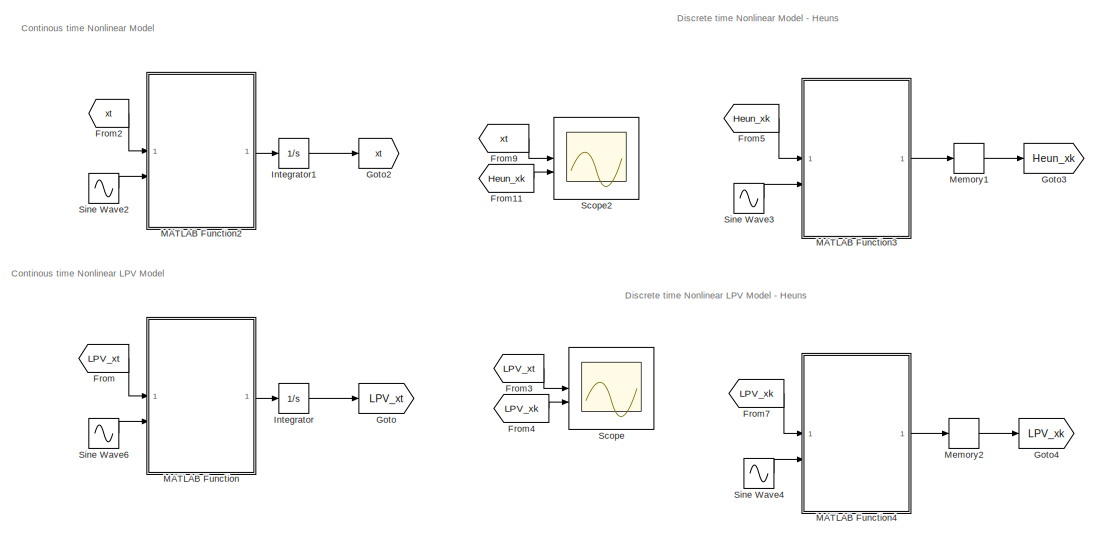
[diagram: root canvas - part 1/2, full width, top band]
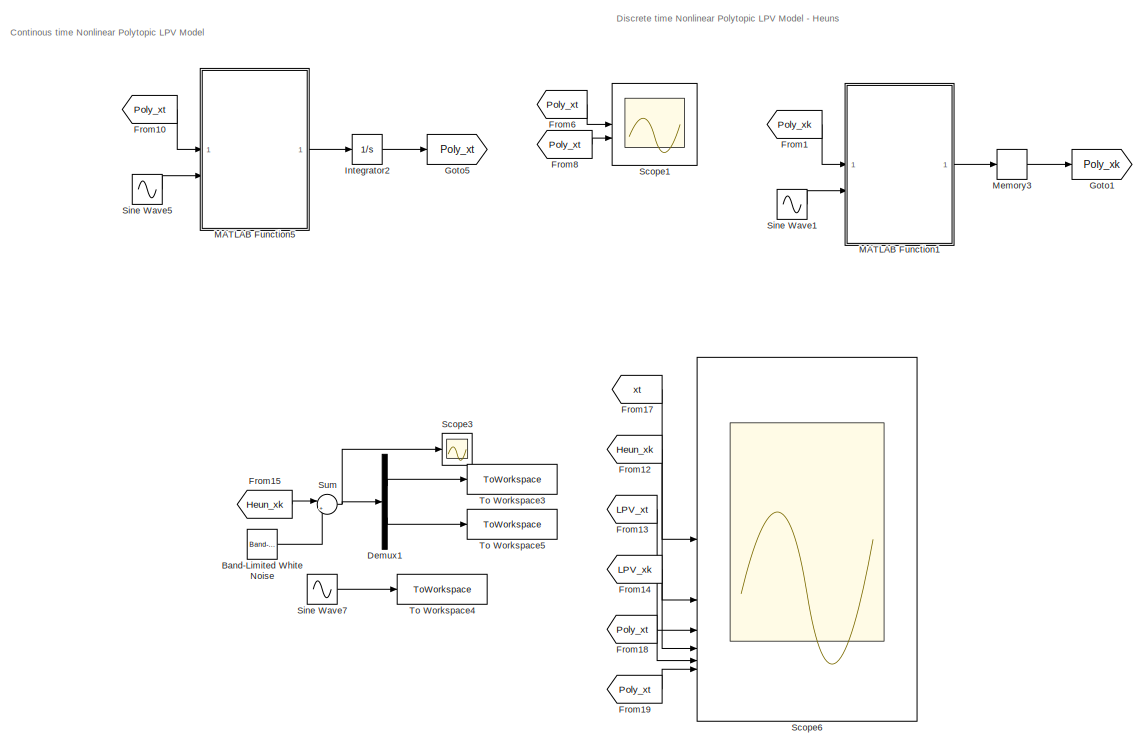
[diagram: root canvas - part 2/2, full width, bottom band]
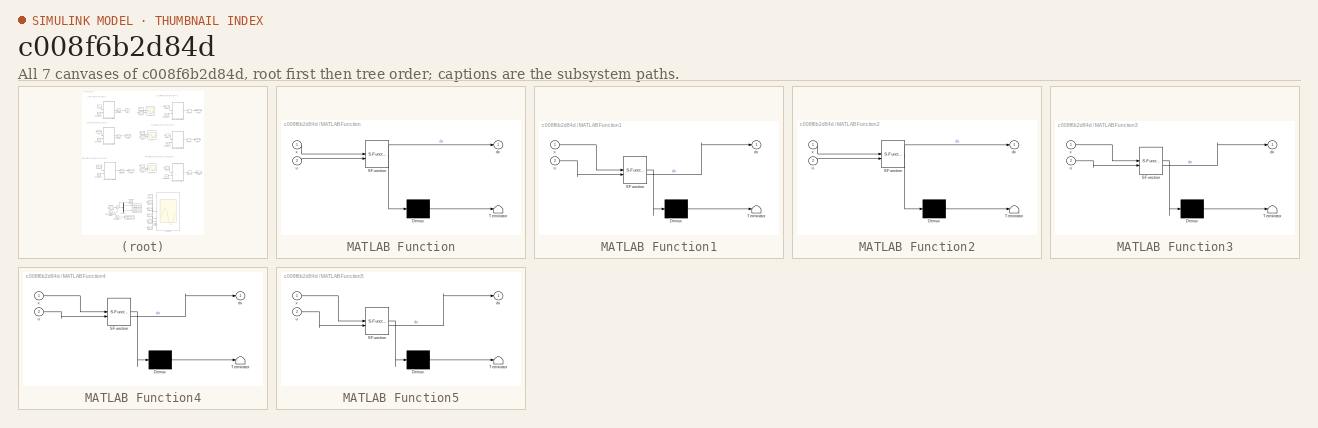
[diagram: thumbnail index - all 7 canvases of the model, root first then tree order]
MODEL slx_c008f6b2d84d
KIND model
CONFIG AbsTol = auto
CONFIG EnableMultiTasking = off
CONFIG FixedStep = 0.01
CONFIG MaxStep = auto
CONFIG MinStep = auto
CONFIG RelTol = 1e-3
CONFIG SampleTimeConstraint = Unconstrained
CONFIG SolverName = FixedStepAuto
CONFIG StartTime = 0.0
CONFIG StopTime = 50
BLOCK [Reference] Band-Limited White Noise  REF=simulink/Sources/Band-Limited
White Noise
  Commented = on
  SourceBlock = simulink/Sources/Band-Limited\nWhite Noise
  SourceType = Band-Limited White Noise.
BLOCK [Demux] Demux1
  Commented = on
  Outputs = 2
BLOCK [From] From
  GotoTag = LPV_xt
BLOCK [From] From1
  GotoTag = Poly_xk
BLOCK [From] From10
  GotoTag = Poly_xt
BLOCK [From] From11
  GotoTag = Heun_xk
BLOCK [From] From12
  GotoTag = Heun_xk
BLOCK [From] From13
  GotoTag = LPV_xt
BLOCK [From] From14
  GotoTag = LPV_xk
BLOCK [From] From15
  Commented = on
  GotoTag = Heun_xk
BLOCK [From] From17
  GotoTag = xt
BLOCK [From] From18
  GotoTag = Poly_xt
BLOCK [From] From19
  GotoTag = Poly_xt
BLOCK [From] From2
  GotoTag = xt
BLOCK [From] From3
  GotoTag = LPV_xt
BLOCK [From] From4
  GotoTag = LPV_xk
BLOCK [From] From5
  GotoTag = Heun_xk
BLOCK [From] From6
  GotoTag = Poly_xt
BLOCK [From] From7
  GotoTag = LPV_xk
BLOCK [From] From8
  GotoTag = Poly_xt
BLOCK [From] From9
  GotoTag = xt
BLOCK [Goto] Goto
  GotoTag = LPV_xt
BLOCK [Goto] Goto1
  GotoTag = Poly_xk
BLOCK [Goto] Goto2
  GotoTag = xt
BLOCK [Goto] Goto3
  GotoTag = Heun_xk
BLOCK [Goto] Goto4
  GotoTag = LPV_xk
BLOCK [Goto] Goto5
  GotoTag = Poly_xt
BLOCK [Integrator] Integrator
  InitialCondition = [0 0.2].'
BLOCK [Integrator] Integrator1
  InitialCondition = [0 0.2].'
BLOCK [Integrator] Integrator2
  InitialCondition = [0 0.2].'
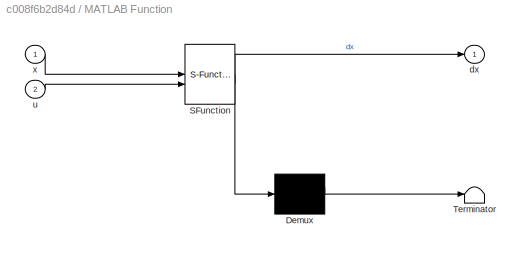
BLOCK [SubSystem] MATLAB Function
  ErrorFcn = Stateflow.Translate.translate
  PermitHierarchicalResolution = ExplicitOnly
  SFBlockType = MATLAB Function
  TreatAsAtomicUnit = on
BLOCK [Demux] MATLAB Function/ Demux 
  Outputs = 1
BLOCK [S-Function] MATLAB Function/ SFunction 
  EnableBusSupport = on
  FunctionName = sf_sfun
  PortCounts = [2 2]
  SFcnIsStateOwnerBlock = off
  SFunctionDeploymentMode = off
  Tag = Stateflow S-Function 2
BLOCK [Terminator] MATLAB Function/ Terminator 
BLOCK [Outport] MATLAB Function/dx
BLOCK [Inport] MATLAB Function/u
  Port = 2
BLOCK [Inport] MATLAB Function/x
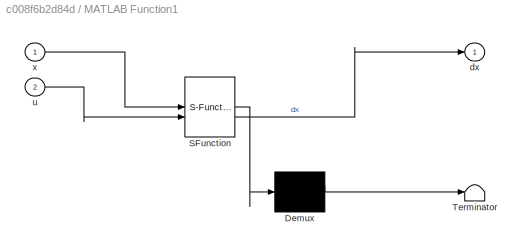
BLOCK [SubSystem] MATLAB Function1
  ErrorFcn = Stateflow.Translate.translate
  PermitHierarchicalResolution = ExplicitOnly
  SFBlockType = MATLAB Function
  TreatAsAtomicUnit = on
BLOCK [Demux] MATLAB Function1/ Demux 
  Outputs = 1
BLOCK [S-Function] MATLAB Function1/ SFunction 
  EnableBusSupport = on
  FunctionName = sf_sfun
  Parameters = adis1,adis2,bdis1,bdis2,x2max,x2min
  PortCounts = [2 2]
  SFcnIsStateOwnerBlock = off
  SFunctionDeploymentMode = off
  Tag = Stateflow S-Function 1
BLOCK [Terminator] MATLAB Function1/ Terminator 
BLOCK [Outport] MATLAB Function1/dx
BLOCK [Inport] MATLAB Function1/u
  Port = 2
BLOCK [Inport] MATLAB Function1/x
BLOCK [SubSystem] MATLAB Function2
  ErrorFcn = Stateflow.Translate.translate
  PermitHierarchicalResolution = ExplicitOnly
  SFBlockType = MATLAB Function
  TreatAsAtomicUnit = on
BLOCK [Demux] MATLAB Function2/ Demux 
  Outputs = 1
BLOCK [S-Function] MATLAB Function2/ SFunction 
  EnableBusSupport = on
  FunctionName = sf_sfun
  PortCounts = [2 2]
  SFcnIsStateOwnerBlock = off
  SFunctionDeploymentMode = off
  Tag = Stateflow S-Function 3
BLOCK [Terminator] MATLAB Function2/ Terminator 
BLOCK [Outport] MATLAB Function2/dx
BLOCK [Inport] MATLAB Function2/u
  Port = 2
BLOCK [Inport] MATLAB Function2/x
BLOCK [SubSystem] MATLAB Function3
  ErrorFcn = Stateflow.Translate.translate
  PermitHierarchicalResolution = ExplicitOnly
  SFBlockType = MATLAB Function
  TreatAsAtomicUnit = on
BLOCK [Demux] MATLAB Function3/ Demux 
  Outputs = 1
BLOCK [S-Function] MATLAB Function3/ SFunction 
  EnableBusSupport = on
  FunctionName = sf_sfun
  PortCounts = [2 2]
  SFcnIsStateOwnerBlock = off
  SFunctionDeploymentMode = off
  Tag = Stateflow S-Function 4
BLOCK [Terminator] MATLAB Function3/ Terminator 
BLOCK [Outport] MATLAB Function3/dx
BLOCK [Inport] MATLAB Function3/u
  Port = 2
BLOCK [Inport] MATLAB Function3/x
BLOCK [SubSystem] MATLAB Function4
  ErrorFcn = Stateflow.Translate.translate
  PermitHierarchicalResolution = ExplicitOnly
  SFBlockType = MATLAB Function
  TreatAsAtomicUnit = on
BLOCK [Demux] MATLAB Function4/ Demux 
  Outputs = 1
BLOCK [S-Function] MATLAB Function4/ SFunction 
  EnableBusSupport = on
  FunctionName = sf_sfun
  PortCounts = [2 2]
  SFcnIsStateOwnerBlock = off
  SFunctionDeploymentMode = off
  Tag = Stateflow S-Function 5
BLOCK [Terminator] MATLAB Function4/ Terminator 
BLOCK [Outport] MATLAB Function4/dx
BLOCK [Inport] MATLAB Function4/u
  Port = 2
BLOCK [Inport] MATLAB Function4/x
BLOCK [SubSystem] MATLAB Function5
  ErrorFcn = Stateflow.Translate.translate
  PermitHierarchicalResolution = ExplicitOnly
  SFBlockType = MATLAB Function
  TreatAsAtomicUnit = on
BLOCK [Demux] MATLAB Function5/ Demux 
  Outputs = 1
BLOCK [S-Function] MATLAB Function5/ SFunction 
  EnableBusSupport = on
  FunctionName = sf_sfun
  Parameters = A1,A2,B,x2max,x2min
  PortCounts = [2 2]
  SFcnIsStateOwnerBlock = off
  SFunctionDeploymentMode = off
  Tag = Stateflow S-Function 6
BLOCK [Terminator] MATLAB Function5/ Terminator 
BLOCK [Outport] MATLAB Function5/dx
BLOCK [Inport] MATLAB Function5/u
  Port = 2
BLOCK [Inport] MATLAB Function5/x
BLOCK [Memory] Memory1
  InitialCondition = [0 0.2].'
BLOCK [Memory] Memory2
  InitialCondition = [0 0.2].'
BLOCK [Memory] Memory3
  InitialCondition = [0 0.2].'
BLOCK [Scope] Scope
  Floating = off
  NumInputPorts = 2
  ScopeSpecificationString = Simulink.scopes.TimeScopeBlockCfg('CurrentConfiguration', extmgr.ConfigurationSet(extmgr.Configuration('Core','General UI',true),extmgr.Configuration('Core','Source UI',true),extmgr.Configuration('Sources','WiredSimulink',true),extmgr.Configuration('Visuals','Time Domain',true,'SerializedDisplays',{struct('MinYLimReal','-0.14843','MaxYLimReal','0.34843','YLabelReal','','MinYLimMag','0.00000','MaxY...<+1415ch>
BLOCK [Scope] Scope1
  Floating = off
  NumInputPorts = 2
  ScopeSpecificationString = Simulink.scopes.TimeScopeBlockCfg('CurrentConfiguration', extmgr.ConfigurationSet(extmgr.Configuration('Core','General UI',true),extmgr.Configuration('Core','Source UI',true),extmgr.Configuration('Sources','WiredSimulink',true,'DataLoggingVariableName','ScopeData1'),extmgr.Configuration('Visuals','Time Domain',true,'SerializedDisplays',{struct('MinYLimReal','-0.03734','MaxYLimReal','0.33609','YLab...<+1420ch>
BLOCK [Scope] Scope2
  Floating = off
  NumInputPorts = 2
  ScopeSpecificationString = Simulink.scopes.TimeScopeBlockCfg('CurrentConfiguration', extmgr.ConfigurationSet(extmgr.Configuration('Core','General UI',true),extmgr.Configuration('Core','Source UI',true),extmgr.Configuration('Sources','WiredSimulink',true,'DataLoggingVariableName','ScopeData2'),extmgr.Configuration('Visuals','Time Domain',true,'SerializedDisplays',{struct('MinYLimReal','-0.03734','MaxYLimReal','0.33609','YLab...<+1501ch>
BLOCK [Scope] Scope3
  Commented = on
  Floating = off
  NumInputPorts = 1
  ScopeSpecificationString = Simulink.scopes.TimeScopeBlockCfg('CurrentConfiguration', extmgr.ConfigurationSet(extmgr.Configuration('Core','General UI',true),extmgr.Configuration('Core','Source UI',true),extmgr.Configuration('Sources','WiredSimulink',true,'DataLoggingVariableName','ScopeData3'),extmgr.Configuration('Visuals','Time Domain',true,'SerializedDisplays',{struct('MinYLimReal','-0.05938','MaxYLimReal','0.37315','YLab...<+1397ch>
BLOCK [Scope] Scope6
  Floating = off
  NumInputPorts = 6
  ScopeSpecificationString = Simulink.scopes.TimeScopeBlockCfg('CurrentConfiguration', extmgr.ConfigurationSet(extmgr.Configuration('Core','General UI',true),extmgr.Configuration('Core','Source UI',true),extmgr.Configuration('Sources','WiredSimulink',true,'DataLoggingVariableName','ScopeData6'),extmgr.Configuration('Visuals','Time Domain',true,'SerializedDisplays',{struct('MinYLimReal','-0.03734','MaxYLimReal','0.33609','YLab...<+1645ch>
BLOCK [Sin] Sine Wave1
  Amplitude = 0.1
  Bias = 0.2
  Frequency = 0.16
  SampleTime = 0.01
BLOCK [Sin] Sine Wave2
  Amplitude = 0.1
  Bias = 0.2
  Frequency = 0.16
  SampleTime = 0
BLOCK [Sin] Sine Wave3
  Amplitude = 0.1
  Bias = 0.2
  Frequency = 0.16
  SampleTime = 0.01
BLOCK [Sin] Sine Wave4
  Amplitude = 0.1
  Bias = 0.2
  Frequency = 0.16
  SampleTime = 0.01
BLOCK [Sin] Sine Wave5
  Amplitude = 0.1
  Bias = 0.2
  Frequency = 0.16
  SampleTime = 0
BLOCK [Sin] Sine Wave6
  Amplitude = 0.1
  Bias = 0.2
  Frequency = 0.16
  SampleTime = 0
BLOCK [Sin] Sine Wave7
  Amplitude = 0.1
  Bias = 0.2
  Commented = on
  Frequency = 0.16
  SampleTime = 0.01
BLOCK [Sum] Sum
  Commented = on
  Inputs = |++
BLOCK [ToWorkspace] To Workspace3
  Commented = on
  FixptAsFi = on
  MaxDataPoints = inf
  SampleTime = -1
  SaveFormat = Structure
  VariableName = y
BLOCK [ToWorkspace] To Workspace4
  Commented = on
  FixptAsFi = on
  MaxDataPoints = inf
  SampleTime = -1
  SaveFormat = Structure
  VariableName = u
BLOCK [ToWorkspace] To Workspace5
  Commented = on
  FixptAsFi = on
  MaxDataPoints = inf
  SampleTime = -1
  SaveFormat = Structure
  VariableName = Realx2
ANNOTATION (root): Discrete time Nonlinear LPV Model - Heuns
ANNOTATION (root): Continous time Nonlinear Polytopic LPV Model
ANNOTATION (root): Discrete time Nonlinear Polytopic LPV Model - Heuns
ANNOTATION (root): Continous time Nonlinear LPV Model
ANNOTATION (root): Continous time Nonlinear Model
ANNOTATION (root): Discrete time Nonlinear Model - Heuns
LINE Band-Limited White Noise:1 -> Sum:2
LINE Demux1:1 -> To Workspace3:1
LINE Demux1:2 -> To Workspace5:1
LINE From10:1 -> MATLAB Function5:1
LINE From11:1 -> Scope2:2
LINE From12:1 -> Scope6:2
LINE From13:1 -> Scope6:3
LINE From14:1 -> Scope6:4
LINE From15:1 -> Sum:1
LINE From17:1 -> Scope6:1
LINE From18:1 -> Scope6:5
LINE From19:1 -> Scope6:6
LINE From1:1 -> MATLAB Function1:1
LINE From2:1 -> MATLAB Function2:1
LINE From3:1 -> Scope:1
LINE From4:1 -> Scope:2
LINE From5:1 -> MATLAB Function3:1
LINE From6:1 -> Scope1:1
LINE From7:1 -> MATLAB Function4:1
LINE From8:1 -> Scope1:2
LINE From9:1 -> Scope2:1
LINE From:1 -> MATLAB Function:1
LINE Integrator1:1 -> Goto2:1
LINE Integrator2:1 -> Goto5:1
LINE Integrator:1 -> Goto:1
LINE MATLAB Function1:1 -> Memory3:1
LINE MATLAB Function2:1 -> Integrator1:1
LINE MATLAB Function3:1 -> Memory1:1
LINE MATLAB Function4:1 -> Memory2:1
LINE MATLAB Function5:1 -> Integrator2:1
LINE MATLAB Function:1 -> Integrator:1
LINE Memory1:1 -> Goto3:1
LINE Memory2:1 -> Goto4:1
LINE Memory3:1 -> Goto1:1
LINE Sine Wave1:1 -> MATLAB Function1:2
LINE Sine Wave2:1 -> MATLAB Function2:2
LINE Sine Wave3:1 -> MATLAB Function3:2
LINE Sine Wave4:1 -> MATLAB Function4:2
LINE Sine Wave5:1 -> MATLAB Function5:2
LINE Sine Wave6:1 -> MATLAB Function:2
LINE Sine Wave7:1 -> To Workspace4:1
NET Sum:1 -> Demux1:1, Scope3:1
note: NET lines group one-source signal fan-out (src -> all destinations, sorted); 1:1 wires keep LINE
CHART MATLAB Function1 states=1 transitions=1
  STATE_LABEL 'eML_blk_kernel()'
  STATE_LABEL 'SCRIPT:\nfunction dx  = fcn(x,u, bdis1, adis2, adis1, bdis2,x2max, x2min)\n\n\nSchedulingMin = (x2max-x(2))/(x2max-x2min);\nSchedulingMax = (1-SchedulingMin);\n\nX = [x(1);x(2)];\n\ndx = SchedulingMin*(adis1*X+bdis1*u) + SchedulingMax*(adis2*X+bdis2*u);'
CHART MATLAB Function states=1 transitions=1
  STATE_LABEL 'eML_blk_kernel()'
  STATE_LABEL "SCRIPT:\nfunction dx = fcn(x,u)\n\nX = [x(1);x(2)];\ndx = [-1 x(2); 0 -1]*X+[0 1].'*u;\n"
CHART MATLAB Function2 states=1 transitions=1
  STATE_LABEL 'eML_blk_kernel()'
  STATE_LABEL 'SCRIPT:\nfunction dx = fcn(x,u)\n\ndx1 = -x(1)+x(2)^2;\ndx2 = -x(2)+u;\ndx = [dx1;dx2];'
CHART MATLAB Function3 states=1 transitions=1
  STATE_LABEL 'eML_blk_kernel()'
  STATE_LABEL 'SCRIPT:\nfunction dx  = fcn(x,u)\n\ndt = 0.01;\nx1Predict = (-x(1)+x(2)^2)*dt+x(1);\nx2Predict = (-x(2)+u)*dt+x(2);\n\nT1 = -x(1)+x(2)^2;\nN1 = -x1Predict+x2Predict^2;\n\nT2 = -x(2)+u;\nN2 = -x2Predict+u;\n\ndx1 = x(1)+(dt/2)*(T1+N1);\ndx2 = x(2)+(dt/2)*(T2+N2);\n\ndx = [dx1;dx2];'
CHART MATLAB Function4 states=1 transitions=1
  STATE_LABEL 'eML_blk_kernel()'
  STATE_LABEL 'SCRIPT:\nfunction dx  = fcn(x,u)\n\ndt = 0.01;\n\n\n%% PREDICTED STATES\nx1Predict = (-x(1)+x(2)^2)*dt+x(1);\nx2Predict = (-x(2)+u)*dt+x(2);\n\n%%  STATE VECTOR\nX = [x(1);x(2)];\n\n%%  PREDICTED STATE VECTOR\nXPredict = [x1Predict;x2Predict];\n\n%% DYNAMICS\nAct1 = [-1 x(2); 0 -1]*X;\nB1 = [0;1]*u;\n\n%% PREDICTED DYNAMICS\nAct2 = [-1 x2Predict; 0 -1]*XPredict;\nB2 = [0;1]*u;\n\n%% OUTPUT\ndx = [x(1);x(2)]+(dt/2)*((Act1+...<+17ch>'
CHART MATLAB Function5 states=1 transitions=1
  STATE_LABEL 'eML_blk_kernel()'
  STATE_LABEL 'SCRIPT:\nfunction dx  = fcn(x,u, A1,A2,B,x2max, x2min)\n\n\nSchedulingMin = (x2max-x(2))/(x2max-x2min);\nSchedulingMax = (1-SchedulingMin);\n\nX = [x(1);x(2)];\n\ndx = SchedulingMin*(A1*X+B*u) + SchedulingMax*(A2*X+B*u);'
CHART  states=0 transitions=0
CHART  states=0 transitions=0
CHART  states=0 transitions=0
CHART  states=0 transitions=0
CHART  states=0 transitions=0
CHART  states=0 transitions=0
